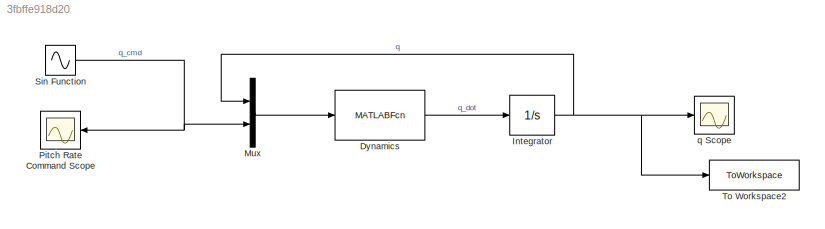
MODEL slx_3fbffe918d20
KIND model
CONFIG AbsTol = auto
CONFIG EnableMultiTasking = off
CONFIG FixedStep = auto
CONFIG MaxStep = auto
CONFIG MinStep = auto
CONFIG RelTol = 1e-3
CONFIG SampleTimeConstraint = Unconstrained
CONFIG SolverName = VariableStepAuto
CONFIG StartTime = 0.0
CONFIG StopTime = TF
BLOCK [MATLABFcn] Dynamics
  MATLABFcn = Ref_Dynamics(u(1),u(2))
  Ports = [1, 1]
BLOCK [Integrator] Integrator
  InitialCondition = q0
  Ports = [1, 1]
BLOCK [Mux] Mux
  DisplayOption = bar
  Inputs = 2
  Ports = [2, 1]
BLOCK [Scope] Pitch Rate Command Scope
  Floating = off
  NameLocation = top
  NumInputPorts = 1
  Ports = [1]
  ScopeSpecificationString = Simulink.scopes.TimeScopeBlockCfg('CurrentConfiguration', extmgr.ConfigurationSet(extmgr.Configuration('Core','General UI',true),extmgr.Configuration('Core','Source UI',true),extmgr.Configuration('Sources','WiredSimulink',true,'DataLoggingVariableName','ScopeData1'),extmgr.Configuration('Visuals','Time Domain',true,'SerializedDisplays',{struct('MinYLimReal','-0.39778','MaxYLimReal','0.39752','YLab...<+1399ch>
BLOCK [Sin] Sin Function 
  Amplitude = Amplitude
  Frequency = Frequency
  Ports = [0, 1]
  SampleTime = 0
BLOCK [ToWorkspace] To Workspace2
  FixptAsFi = on
  MaxDataPoints = inf
  Ports = [1]
  SampleTime = -1
  SaveFormat = Timeseries
  VariableName = q_ref
BLOCK [Scope] q Scope
  Floating = off
  NumInputPorts = 1
  Ports = [1]
  ScopeSpecificationString = Simulink.scopes.TimeScopeBlockCfg('CurrentConfiguration', extmgr.ConfigurationSet(extmgr.Configuration('Core','General UI',true),extmgr.Configuration('Core','Source UI',true),extmgr.Configuration('Sources','WiredSimulink',true),extmgr.Configuration('Visuals','Time Domain',true,'SerializedDisplays',{struct('MinYLimReal','-0.39666','MaxYLimReal','0.39689','YLabelReal','','MinYLimMag','0.00000','MaxY...<+1321ch>
LINE Dynamics:1 -> Integrator:1
NET Integrator:1 -> Mux:1, To Workspace2:1, q Scope:1
LINE Mux:1 -> Dynamics:1
NET Sin Function :1 -> Mux:2, Pitch Rate Command Scope:1
note: NET lines group one-source signal fan-out (src -> all destinations, sorted); 1:1 wires keep LINE
